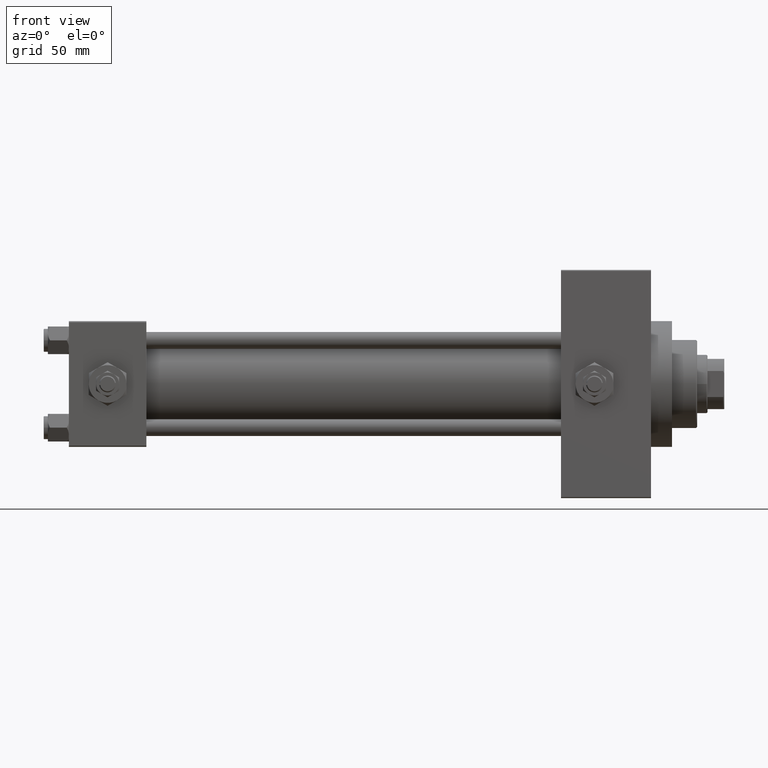
[diagram: clean part render]
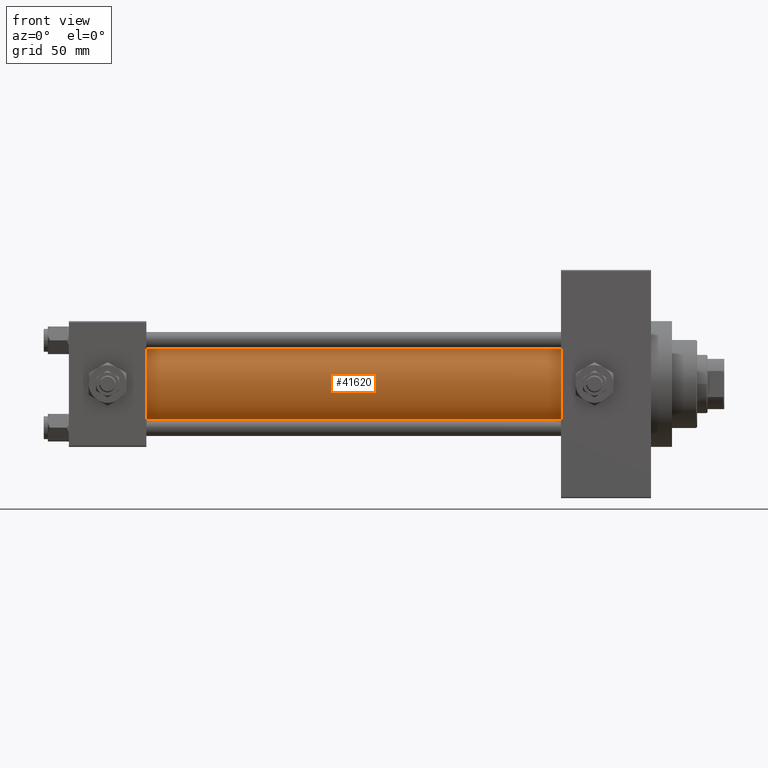
[diagram: same view with one face highlighted and labeled with its STEP entity id]
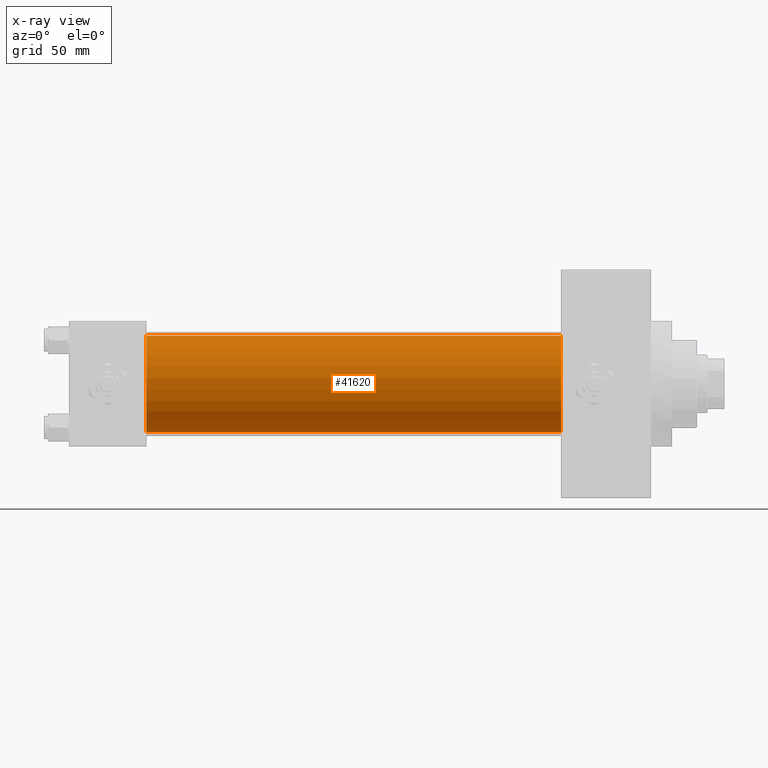
[diagram: x-ray of the same camera — body ghosted, the highlighted face saturated]
A machine part, front view. The second image highlights one B-rep face of the part: STEP entity #41620.
The next image is the same camera in x-ray: the body ghosted, the highlighted face saturated — about 0% of this face is hidden behind the body in this view.
In plain terms, the highlighted cylindrical surface (partial cylindrical patch) has radius 23 mm, axis along (-1, -0, -0).
Its self-contained STEP definition (entity closure, byte-faithful):
#669 = DIRECTION ( 'NONE',  ( 0.000000000000000000, 0.000000000000000000, 1.000000000000000000 ) ) ;
#1124 = CIRCLE ( 'NONE', #33746, 23.00000000000000000 ) ;
#1416 = DIRECTION ( 'NONE',  ( 0.000000000000000000, 0.000000000000000000, -1.000000000000000000 ) ) ;
#1547 = CARTESIAN_POINT ( 'NONE',  ( 235.0000000000000284, 2.146024240737016609E-16, -23.00000000000000000 ) ) ;
#2120 = VECTOR ( 'NONE', #16758, 1000.000000000000000 ) ;
#4261 = AXIS2_PLACEMENT_3D ( 'NONE', #38789, #23830, #669 ) ;
#4412 = VERTEX_POINT ( 'NONE', #34754 ) ;
#5867 = VERTEX_POINT ( 'NONE', #30908 ) ;
#12148 = LINE ( 'NONE', #27321, #46031 ) ;
#13834 = CARTESIAN_POINT ( 'NONE',  ( 235.0000000000000284, -2.602085213965210642E-15, 0.000000000000000000 ) ) ;
#16108 = VERTEX_POINT ( 'NONE', #43192 ) ;
#16585 = EDGE_CURVE ( 'NONE', #25112, #4412, #45596, .T. ) ;
#16758 = DIRECTION ( 'NONE',  ( -1.000000000000000000, -0.000000000000000000, -0.000000000000000000 ) ) ;
#17668 = ORIENTED_EDGE ( 'NONE', *, *, #23883, .F. ) ;
#18308 = EDGE_CURVE ( 'NONE', #5867, #16108, #1124, .T. ) ;
#19715 = AXIS2_PLACEMENT_3D ( 'NONE', #13834, #36478, #42990 ) ;
#23830 = DIRECTION ( 'NONE',  ( 1.000000000000000000, -0.000000000000000000, 0.000000000000000000 ) ) ;
#23883 = EDGE_CURVE ( 'NONE', #16108, #4412, #43165, .T. ) ;
#25026 = CYLINDRICAL_SURFACE ( 'NONE', #19715, 23.00000000000000000 ) ;
#25112 = VERTEX_POINT ( 'NONE', #26938 ) ;
#26938 = CARTESIAN_POINT ( 'NONE',  ( 37.00000000000000711, -2.602085213965210642E-15, 23.00000000000000000 ) ) ;
#27321 = CARTESIAN_POINT ( 'NONE',  ( 235.0000000000000284, -2.602085213965210642E-15, 23.00000000000000000 ) ) ;
#28063 = CARTESIAN_POINT ( 'NONE',  ( 235.0000000000000284, -2.602085213965210642E-15, 0.000000000000000000 ) ) ;
#30908 = CARTESIAN_POINT ( 'NONE',  ( 235.0000000000000284, -2.602085213965210642E-15, 23.00000000000000000 ) ) ;
#32821 = ORIENTED_EDGE ( 'NONE', *, *, #16585, .T. ) ;
#33746 = AXIS2_PLACEMENT_3D ( 'NONE', #28063, #42539, #1416 ) ;
#34754 = CARTESIAN_POINT ( 'NONE',  ( 37.00000000000000711, 2.146024240737016609E-16, -23.00000000000000000 ) ) ;
#35738 = FACE_OUTER_BOUND ( 'NONE', #37512, .T. ) ;
#36478 = DIRECTION ( 'NONE',  ( -1.000000000000000000, -0.000000000000000000, -0.000000000000000000 ) ) ;
#36563 = ORIENTED_EDGE ( 'NONE', *, *, #44477, .T. ) ;
#37512 = EDGE_LOOP ( 'NONE', ( #17668, #47064, #36563, #32821 ) ) ;
#38789 = CARTESIAN_POINT ( 'NONE',  ( 37.00000000000000711, -2.602085213965210642E-15, 0.000000000000000000 ) ) ;
#41620 = ADVANCED_FACE ( 'NONE', ( #35738 ), #25026, .T. ) ;
#42531 = DIRECTION ( 'NONE',  ( -1.000000000000000000, -0.000000000000000000, -0.000000000000000000 ) ) ;
#42539 = DIRECTION ( 'NONE',  ( 1.000000000000000000, 0.000000000000000000, 0.000000000000000000 ) ) ;
#42990 = DIRECTION ( 'NONE',  ( 0.000000000000000000, 0.000000000000000000, 1.000000000000000000 ) ) ;
#43165 = LINE ( 'NONE', #1547, #2120 ) ;
#43192 = CARTESIAN_POINT ( 'NONE',  ( 235.0000000000000284, 2.146024240737016609E-16, -23.00000000000000000 ) ) ;
#44477 = EDGE_CURVE ( 'NONE', #5867, #25112, #12148, .T. ) ;
#45596 = CIRCLE ( 'NONE', #4261, 23.00000000000000000 ) ;
#46031 = VECTOR ( 'NONE', #42531, 1000.000000000000000 ) ;
#47064 = ORIENTED_EDGE ( 'NONE', *, *, #18308, .F. ) ;